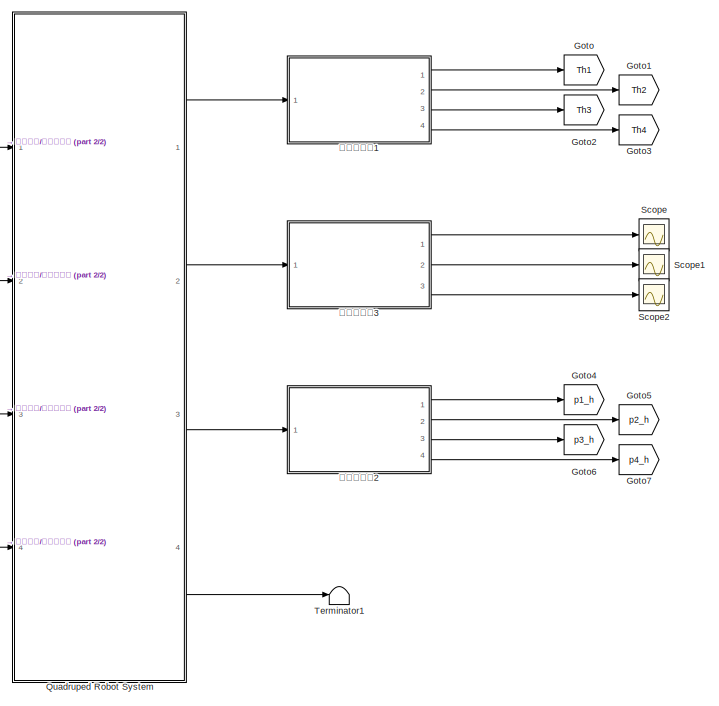
[diagram: root canvas - part 1/2, right side, full height]
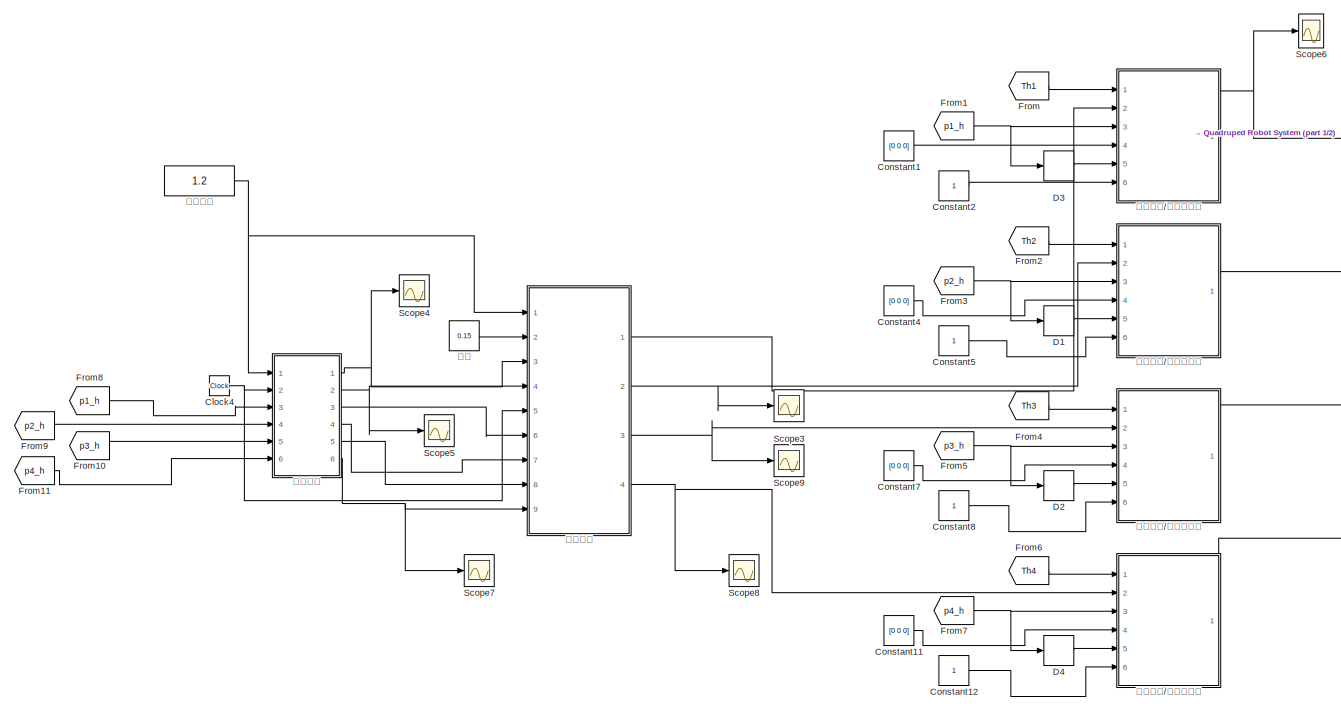
[diagram: root canvas - part 2/2, left side, full height]
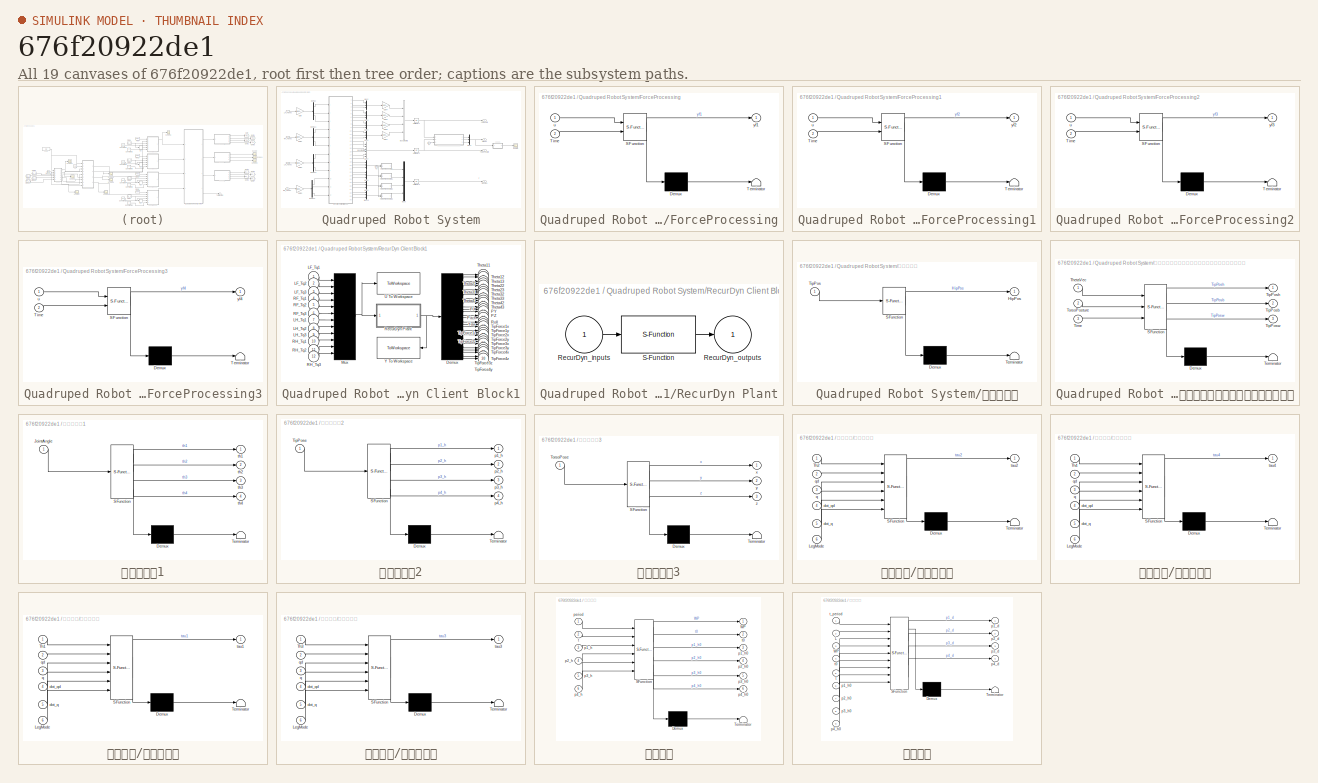
[diagram: thumbnail index - all 19 canvases of the model, root first then tree order]
MODEL slx_676f20922de1
KIND model
CONFIG AbsTol = auto
CONFIG EnableMultiTasking = on
CONFIG FixedStep = 0.001
CONFIG MaxStep = auto
CONFIG MinStep = auto
CONFIG RelTol = 1e-3
CONFIG SampleTimeConstraint = Unconstrained
CONFIG Solver = ode4
CONFIG SolverName = ode4
CONFIG StartTime = 0.0
CONFIG StopTime = 5
BLOCK [Clock] Clock4
BLOCK [Constant] Constant1
  Value = [0 0 0]
BLOCK [Constant] Constant11
  Value = [0 0 0]
BLOCK [Constant] Constant12
BLOCK [Constant] Constant2
BLOCK [Constant] Constant4
  Value = [0 0 0]
BLOCK [Constant] Constant5
BLOCK [Constant] Constant7
  Value = [0 0 0]
BLOCK [Constant] Constant8
BLOCK [Derivative] D1
  CoefficientInTFapproximation = 0.01
BLOCK [Derivative] D2
  CoefficientInTFapproximation = 0.01
BLOCK [Derivative] D3
  CoefficientInTFapproximation = 0.01
BLOCK [Derivative] D4
  CoefficientInTFapproximation = 0.01
BLOCK [From] From
  GotoTag = Th1
BLOCK [From] From1
  GotoTag = p1_h
BLOCK [From] From10
  GotoTag = p3_h
BLOCK [From] From11
  GotoTag = p4_h
BLOCK [From] From2
  GotoTag = Th2
BLOCK [From] From3
  GotoTag = p2_h
BLOCK [From] From4
  GotoTag = Th3
BLOCK [From] From5
  GotoTag = p3_h
BLOCK [From] From6
  GotoTag = Th4
BLOCK [From] From7
  GotoTag = p4_h
BLOCK [From] From8
  GotoTag = p1_h
BLOCK [From] From9
  GotoTag = p2_h
BLOCK [Goto] Goto
  GotoTag = Th1
BLOCK [Goto] Goto1
  GotoTag = Th2
BLOCK [Goto] Goto2
  GotoTag = Th3
BLOCK [Goto] Goto3
  GotoTag = Th4
BLOCK [Goto] Goto4
  GotoTag = p1_h
BLOCK [Goto] Goto5
  GotoTag = p2_h
BLOCK [Goto] Goto6
  GotoTag = p3_h
BLOCK [Goto] Goto7
  GotoTag = p4_h
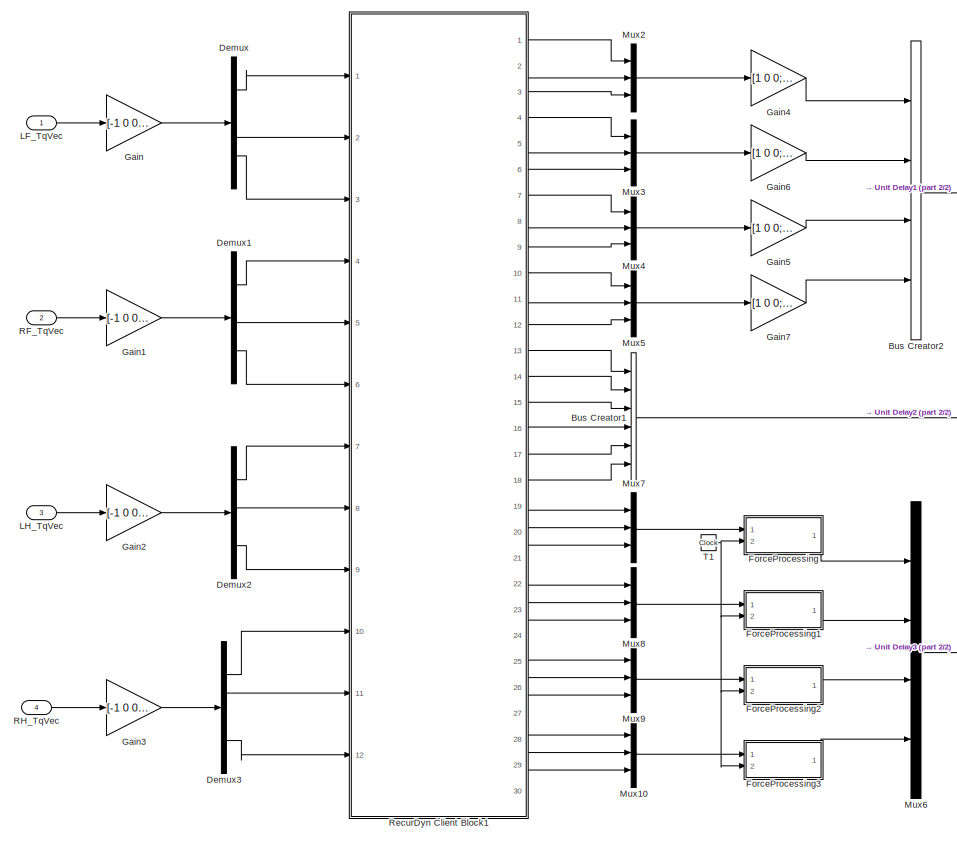
[diagram: Quadruped Robot System - part 1/2, left side, full height]
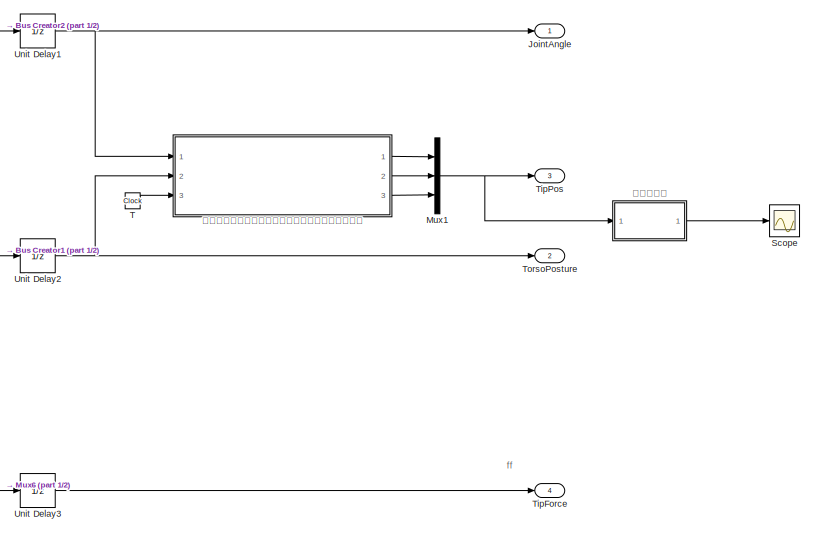
[diagram: Quadruped Robot System - part 2/2, middle right region]
BLOCK [SubSystem] Quadruped Robot System
  Ports = [4, 4]
  RequestExecContextInheritance = off
BLOCK [BusCreator] Quadruped Robot System/Bus Creator1
  DisplayOption = bar
  InheritFromInputs = on
  Inputs = 6
  Ports = [6, 1]
BLOCK [BusCreator] Quadruped Robot System/Bus Creator2
  DisplayOption = bar
  InheritFromInputs = on
  Inputs = 4
  Ports = [4, 1]
BLOCK [Demux] Quadruped Robot System/Demux
  DisplayOption = bar
  Outputs = 3
  Ports = [1, 3]
BLOCK [Demux] Quadruped Robot System/Demux1
  DisplayOption = bar
  Outputs = 3
  Ports = [1, 3]
BLOCK [Demux] Quadruped Robot System/Demux2
  DisplayOption = bar
  Outputs = 3
  Ports = [1, 3]
BLOCK [Demux] Quadruped Robot System/Demux3
  DisplayOption = bar
  Outputs = 3
  Ports = [1, 3]
BLOCK [SubSystem] Quadruped Robot System/ForceProcessing
  ErrorFcn = Stateflow.Translate.translate
  PermitHierarchicalResolution = ExplicitOnly
  Ports = [2, 1]
  RequestExecContextInheritance = off
  SFBlockType = MATLAB Function
  TreatAsAtomicUnit = on
BLOCK [Demux] Quadruped Robot System/ForceProcessing/ Demux 
  Outputs = 1
  Ports = [1, 1]
BLOCK [S-Function] Quadruped Robot System/ForceProcessing/ SFunction 
  EnableBusSupport = on
  FunctionName = sf_sfun
  PortCounts = [2 2]
  Ports = [2, 2]
  SFcnIsStateOwnerBlock = off
  SFunctionDeploymentMode = off
  Tag = Stateflow S-Function test_quadruped_staticwalk 2
BLOCK [Terminator] Quadruped Robot System/ForceProcessing/ Terminator 
BLOCK [Inport] Quadruped Robot System/ForceProcessing/Time
  IconDisplay = Port number
  Port = 2
BLOCK [Inport] Quadruped Robot System/ForceProcessing/u
  IconDisplay = Port number
BLOCK [Outport] Quadruped Robot System/ForceProcessing/yf1
  IconDisplay = Port number
BLOCK [SubSystem] Quadruped Robot System/ForceProcessing1
  ErrorFcn = Stateflow.Translate.translate
  PermitHierarchicalResolution = ExplicitOnly
  Ports = [2, 1]
  RequestExecContextInheritance = off
  SFBlockType = MATLAB Function
  TreatAsAtomicUnit = on
BLOCK [Demux] Quadruped Robot System/ForceProcessing1/ Demux 
  Outputs = 1
  Ports = [1, 1]
BLOCK [S-Function] Quadruped Robot System/ForceProcessing1/ SFunction 
  EnableBusSupport = on
  FunctionName = sf_sfun
  PortCounts = [2 2]
  Ports = [2, 2]
  SFcnIsStateOwnerBlock = off
  SFunctionDeploymentMode = off
  Tag = Stateflow S-Function test_quadruped_staticwalk 1
BLOCK [Terminator] Quadruped Robot System/ForceProcessing1/ Terminator 
BLOCK [Inport] Quadruped Robot System/ForceProcessing1/Time
  IconDisplay = Port number
  Port = 2
BLOCK [Inport] Quadruped Robot System/ForceProcessing1/u
  IconDisplay = Port number
BLOCK [Outport] Quadruped Robot System/ForceProcessing1/yf2
  IconDisplay = Port number
BLOCK [SubSystem] Quadruped Robot System/ForceProcessing2
  ErrorFcn = Stateflow.Translate.translate
  PermitHierarchicalResolution = ExplicitOnly
  Ports = [2, 1]
  RequestExecContextInheritance = off
  SFBlockType = MATLAB Function
  TreatAsAtomicUnit = on
BLOCK [Demux] Quadruped Robot System/ForceProcessing2/ Demux 
  Outputs = 1
  Ports = [1, 1]
BLOCK [S-Function] Quadruped Robot System/ForceProcessing2/ SFunction 
  EnableBusSupport = on
  FunctionName = sf_sfun
  PortCounts = [2 2]
  Ports = [2, 2]
  SFcnIsStateOwnerBlock = off
  SFunctionDeploymentMode = off
  Tag = Stateflow S-Function test_quadruped_staticwalk 3
BLOCK [Terminator] Quadruped Robot System/ForceProcessing2/ Terminator 
BLOCK [Inport] Quadruped Robot System/ForceProcessing2/Time
  IconDisplay = Port number
  Port = 2
BLOCK [Inport] Quadruped Robot System/ForceProcessing2/u
  IconDisplay = Port number
BLOCK [Outport] Quadruped Robot System/ForceProcessing2/yf3
  IconDisplay = Port number
BLOCK [SubSystem] Quadruped Robot System/ForceProcessing3
  ErrorFcn = Stateflow.Translate.translate
  PermitHierarchicalResolution = ExplicitOnly
  Ports = [2, 1]
  RequestExecContextInheritance = off
  SFBlockType = MATLAB Function
  TreatAsAtomicUnit = on
BLOCK [Demux] Quadruped Robot System/ForceProcessing3/ Demux 
  Outputs = 1
  Ports = [1, 1]
BLOCK [S-Function] Quadruped Robot System/ForceProcessing3/ SFunction 
  EnableBusSupport = on
  FunctionName = sf_sfun
  PortCounts = [2 2]
  Ports = [2, 2]
  SFcnIsStateOwnerBlock = off
  SFunctionDeploymentMode = off
  Tag = Stateflow S-Function test_quadruped_staticwalk 4
BLOCK [Terminator] Quadruped Robot System/ForceProcessing3/ Terminator 
BLOCK [Inport] Quadruped Robot System/ForceProcessing3/Time
  IconDisplay = Port number
  Port = 2
BLOCK [Inport] Quadruped Robot System/ForceProcessing3/u
  IconDisplay = Port number
BLOCK [Outport] Quadruped Robot System/ForceProcessing3/yf4
  IconDisplay = Port number
BLOCK [Gain] Quadruped Robot System/Gain
  Gain = [-1 0 0;0 1 0;0 0 -1]
  Multiplication = Matrix(K*u) (u vector)
  OutDataTypeStr = Inherit: Inherit via internal rule
  ParamDataTypeStr = Inherit: Inherit via internal rule
  SaturateOnIntegerOverflow = off
BLOCK [Gain] Quadruped Robot System/Gain1
  Gain = [-1 0 0;0 1 0;0 0 1]
  Multiplication = Matrix(K*u) (u vector)
  OutDataTypeStr = Inherit: Inherit via internal rule
  ParamDataTypeStr = Inherit: Inherit via internal rule
  SaturateOnIntegerOverflow = off
BLOCK [Gain] Quadruped Robot System/Gain2
  Gain = [-1 0 0;0 1 0;0 0 -1]
  Multiplication = Matrix(K*u) (u vector)
  OutDataTypeStr = Inherit: Inherit via internal rule
  ParamDataTypeStr = Inherit: Inherit via internal rule
  SaturateOnIntegerOverflow = off
BLOCK [Gain] Quadruped Robot System/Gain3
  Gain = [-1 0 0;0 1 0;0 0 1]
  Multiplication = Matrix(K*u) (u vector)
  OutDataTypeStr = Inherit: Inherit via internal rule
  ParamDataTypeStr = Inherit: Inherit via internal rule
  SaturateOnIntegerOverflow = off
BLOCK [Gain] Quadruped Robot System/Gain4
  Gain = [1 0 0;0 1 0;0 0 1]
  Multiplication = Matrix(K*u) (u vector)
  OutDataTypeStr = Inherit: Inherit via internal rule
  ParamDataTypeStr = Inherit: Inherit via internal rule
  SaturateOnIntegerOverflow = off
BLOCK [Gain] Quadruped Robot System/Gain5
  Gain = [1 0 0;0 1 0;0 0 1]
  Multiplication = Matrix(K*u) (u vector)
  OutDataTypeStr = Inherit: Inherit via internal rule
  ParamDataTypeStr = Inherit: Inherit via internal rule
  SaturateOnIntegerOverflow = off
BLOCK [Gain] Quadruped Robot System/Gain6
  Gain = [1 0 0;0 1 0;0 0 -1]
  Multiplication = Matrix(K*u) (u vector)
  OutDataTypeStr = Inherit: Inherit via internal rule
  ParamDataTypeStr = Inherit: Inherit via internal rule
  SaturateOnIntegerOverflow = off
BLOCK [Gain] Quadruped Robot System/Gain7
  Gain = [1 0 0;0 1 0;0 0 -1]
  Multiplication = Matrix(K*u) (u vector)
  OutDataTypeStr = Inherit: Inherit via internal rule
  ParamDataTypeStr = Inherit: Inherit via internal rule
  SaturateOnIntegerOverflow = off
BLOCK [Outport] Quadruped Robot System/JointAngle
  IconDisplay = Port number
BLOCK [Inport] Quadruped Robot System/LF_TqVec
  IconDisplay = Port number
BLOCK [Inport] Quadruped Robot System/LH_TqVec
  IconDisplay = Port number
  Port = 3
BLOCK [Mux] Quadruped Robot System/Mux1
  DisplayOption = bar
  Inputs = 3
  Ports = [3, 1]
BLOCK [Mux] Quadruped Robot System/Mux10
  DisplayOption = bar
  Inputs = 3
  Ports = [3, 1]
BLOCK [Mux] Quadruped Robot System/Mux2
  DisplayOption = bar
  Inputs = 3
  Ports = [3, 1]
BLOCK [Mux] Quadruped Robot System/Mux3
  DisplayOption = bar
  Inputs = 3
  Ports = [3, 1]
BLOCK [Mux] Quadruped Robot System/Mux4
  DisplayOption = bar
  Inputs = 3
  Ports = [3, 1]
BLOCK [Mux] Quadruped Robot System/Mux5
  DisplayOption = bar
  Inputs = 3
  Ports = [3, 1]
BLOCK [Mux] Quadruped Robot System/Mux6
  DisplayOption = bar
  Ports = [4, 1]
BLOCK [Mux] Quadruped Robot System/Mux7
  DisplayOption = bar
  Inputs = 3
  Ports = [3, 1]
BLOCK [Mux] Quadruped Robot System/Mux8
  DisplayOption = bar
  Inputs = 3
  Ports = [3, 1]
BLOCK [Mux] Quadruped Robot System/Mux9
  DisplayOption = bar
  Inputs = 3
  Ports = [3, 1]
BLOCK [Inport] Quadruped Robot System/RF_TqVec
  IconDisplay = Port number
  Port = 2
BLOCK [Inport] Quadruped Robot System/RH_TqVec
  IconDisplay = Port number
  Port = 4
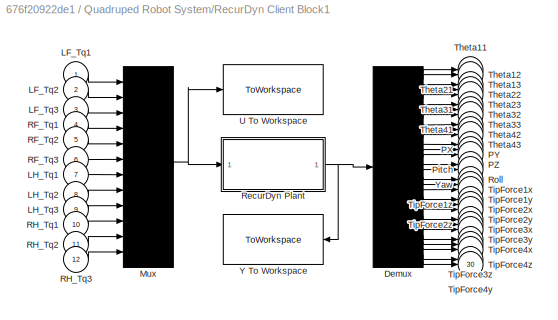
BLOCK [SubSystem] Quadruped Robot System/RecurDyn Client Block1
  Ports = [12, 30]
  RequestExecContextInheritance = off
  ShowPortLabels = none
BLOCK [Demux] Quadruped Robot System/RecurDyn Client Block1/Demux
  Outputs = 30
  Ports = [1, 30]
BLOCK [Inport] Quadruped Robot System/RecurDyn Client Block1/LF_Tq1
  IconDisplay = Port number
BLOCK [Inport] Quadruped Robot System/RecurDyn Client Block1/LF_Tq2
  IconDisplay = Port number
  Port = 2
BLOCK [Inport] Quadruped Robot System/RecurDyn Client Block1/LF_Tq3
  IconDisplay = Port number
  Port = 3
BLOCK [Inport] Quadruped Robot System/RecurDyn Client Block1/LH_Tq1
  IconDisplay = Port number
  Port = 7
BLOCK [Inport] Quadruped Robot System/RecurDyn Client Block1/LH_Tq2
  IconDisplay = Port number
  Port = 8
BLOCK [Inport] Quadruped Robot System/RecurDyn Client Block1/LH_Tq3
  IconDisplay = Port number
  Port = 9
BLOCK [Mux] Quadruped Robot System/RecurDyn Client Block1/Mux
  Inputs = 12
  Ports = [12, 1]
BLOCK [Outport] Quadruped Robot System/RecurDyn Client Block1/PX        
  IconDisplay = Port number
  Port = 13
BLOCK [Outport] Quadruped Robot System/RecurDyn Client Block1/PY        
  IconDisplay = Port number
  Port = 14
BLOCK [Outport] Quadruped Robot System/RecurDyn Client Block1/PZ        
  IconDisplay = Port number
  Port = 15
BLOCK [Outport] Quadruped Robot System/RecurDyn Client Block1/Pitch     
  IconDisplay = Port number
  Port = 16
BLOCK [Inport] Quadruped Robot System/RecurDyn Client Block1/RF_Tq1
  IconDisplay = Port number
  Port = 4
BLOCK [Inport] Quadruped Robot System/RecurDyn Client Block1/RF_Tq2
  IconDisplay = Port number
  Port = 5
BLOCK [Inport] Quadruped Robot System/RecurDyn Client Block1/RF_Tq3
  IconDisplay = Port number
  Port = 6
BLOCK [Inport] Quadruped Robot System/RecurDyn Client Block1/RH_Tq1
  IconDisplay = Port number
  Port = 10
BLOCK [Inport] Quadruped Robot System/RecurDyn Client Block1/RH_Tq2
  IconDisplay = Port number
  Port = 11
BLOCK [Inport] Quadruped Robot System/RecurDyn Client Block1/RH_Tq3
  IconDisplay = Port number
  Port = 12
BLOCK [SubSystem] Quadruped Robot System/RecurDyn Client Block1/RecurDyn Plant
  Ports = [1, 1]
  RequestExecContextInheritance = off
BLOCK [Inport] Quadruped Robot System/RecurDyn Client Block1/RecurDyn Plant/ RecurDyn_inputs
  IconDisplay = Port number
BLOCK [Outport] Quadruped Robot System/RecurDyn Client Block1/RecurDyn Plant/RecurDyn_outputs
  IconDisplay = Port number
  InitialOutput = 0
BLOCK [S-Function] Quadruped Robot System/RecurDyn Client Block1/RecurDyn Plant/S-Function
  EnableBusSupport = off
  FunctionName = recurdyn_client_9_1
  Parameters = RecurDyn_controltimestep_,RecurDyn_model_name,RecurDyn_,RecurDyn_static_,RecurDyn_step_,RecurDyn_show_,RecurDyn_ani_,Matlab_version_,RecurDyn_model_n,Plant_inputs_num,Plant_outputs_num,Waitingtime,Create_Output_Folder_,Output_File_Name_,Output_file_n
  Ports = [1, 1]
  SFcnIsStateOwnerBlock = off
  SFunctionDeploymentMode = off
BLOCK [Outport] Quadruped Robot System/RecurDyn Client Block1/Roll      
  IconDisplay = Port number
  Port = 17
BLOCK [Outport] Quadruped Robot System/RecurDyn Client Block1/Theta11   
  IconDisplay = Port number
BLOCK [Outport] Quadruped Robot System/RecurDyn Client Block1/Theta12   
  IconDisplay = Port number
  Port = 2
BLOCK [Outport] Quadruped Robot System/RecurDyn Client Block1/Theta13   
  IconDisplay = Port number
  Port = 3
BLOCK [Outport] Quadruped Robot System/RecurDyn Client Block1/Theta21   
  IconDisplay = Port number
  Port = 4
BLOCK [Outport] Quadruped Robot System/RecurDyn Client Block1/Theta22   
  IconDisplay = Port number
  Port = 5
BLOCK [Outport] Quadruped Robot System/RecurDyn Client Block1/Theta23   
  IconDisplay = Port number
  Port = 6
BLOCK [Outport] Quadruped Robot System/RecurDyn Client Block1/Theta31   
  IconDisplay = Port number
  Port = 7
BLOCK [Outport] Quadruped Robot System/RecurDyn Client Block1/Theta32   
  IconDisplay = Port number
  Port = 8
BLOCK [Outport] Quadruped Robot System/RecurDyn Client Block1/Theta33   
  IconDisplay = Port number
  Port = 9
BLOCK [Outport] Quadruped Robot System/RecurDyn Client Block1/Theta41   
  IconDisplay = Port number
  Port = 10
BLOCK [Outport] Quadruped Robot System/RecurDyn Client Block1/Theta42   
  IconDisplay = Port number
  Port = 11
BLOCK [Outport] Quadruped Robot System/RecurDyn Client Block1/Theta43   
  IconDisplay = Port number
  Port = 12
BLOCK [Outport] Quadruped Robot System/RecurDyn Client Block1/TipForce1x
  IconDisplay = Port number
  Port = 19
BLOCK [Outport] Quadruped Robot System/RecurDyn Client Block1/TipForce1y
  IconDisplay = Port number
  Port = 20
BLOCK [Outport] Quadruped Robot System/RecurDyn Client Block1/TipForce1z
  IconDisplay = Port number
  Port = 21
BLOCK [Outport] Quadruped Robot System/RecurDyn Client Block1/TipForce2x
  IconDisplay = Port number
  Port = 22
BLOCK [Outport] Quadruped Robot System/RecurDyn Client Block1/TipForce2y
  IconDisplay = Port number
  Port = 23
BLOCK [Outport] Quadruped Robot System/RecurDyn Client Block1/TipForce2z
  IconDisplay = Port number
  Port = 24
BLOCK [Outport] Quadruped Robot System/RecurDyn Client Block1/TipForce3x
  IconDisplay = Port number
  Port = 25
BLOCK [Outport] Quadruped Robot System/RecurDyn Client Block1/TipForce3y
  IconDisplay = Port number
  Port = 26
BLOCK [Outport] Quadruped Robot System/RecurDyn Client Block1/TipForce3z
  IconDisplay = Port number
  Port = 27
BLOCK [Outport] Quadruped Robot System/RecurDyn Client Block1/TipForce4x
  IconDisplay = Port number
  Port = 28
BLOCK [Outport] Quadruped Robot System/RecurDyn Client Block1/TipForce4y
  IconDisplay = Port number
  Port = 29
BLOCK [Outport] Quadruped Robot System/RecurDyn Client Block1/TipForce4z
  IconDisplay = Port number
  Port = 30
BLOCK [ToWorkspace] Quadruped Robot System/RecurDyn Client Block1/U To Workspace
  MaxDataPoints = inf
  Ports = [1]
  VariableName = RecurDyn_inputs
BLOCK [ToWorkspace] Quadruped Robot System/RecurDyn Client Block1/Y To Workspace
  MaxDataPoints = inf
  Ports = [1]
  VariableName = RecurDyn_outputs
BLOCK [Outport] Quadruped Robot System/RecurDyn Client Block1/Yaw       
  IconDisplay = Port number
  Port = 18
BLOCK [Scope] Quadruped Robot System/Scope
  Floating = off
  NumInputPorts = 1
  Ports = [1]
  ScopeSpecificationString = Simulink.scopes.TimeScopeBlockCfg('CurrentConfiguration', extmgr.ConfigurationSet(extmgr.Configuration('Core','General UI',true),extmgr.Configuration('Core','Source UI',true),extmgr.Configuration('Sources','WiredSimulink',true,'DataLoggingVariableName','ScopeData1'),extmgr.Configuration('Visuals','Time Domain',true,'SerializedDisplays',{struct('MinYLimReal','-0.82316','MaxYLimReal','0.12564','YLab...<+1415ch>
BLOCK [Clock] Quadruped Robot System/T
BLOCK [Clock] Quadruped Robot System/T1
BLOCK [Outport] Quadruped Robot System/TipForce
  IconDisplay = Port number
  Port = 4
BLOCK [Outport] Quadruped Robot System/TipPos
  IconDisplay = Port number
  Port = 3
BLOCK [Outport] Quadruped Robot System/TorsoPosture
  IconDisplay = Port number
  Port = 2
BLOCK [UnitDelay] Quadruped Robot System/Unit Delay1
  InitialCondition = [pi/2;pi/4;0;pi/2;pi/4;0;pi/2;pi/4;0;pi/2;pi/4;0]
  InputProcessing = Elements as channels (sample based)
  SampleTime = 0.001
BLOCK [UnitDelay] Quadruped Robot System/Unit Delay2
  InitialCondition = [0;0.70;0;0;0;0]
  InputProcessing = Elements as channels (sample based)
  SampleTime = 0.001
BLOCK [UnitDelay] Quadruped Robot System/Unit Delay3
  InitialCondition = [0;0;0;0;0;0;0;0;0;0;0;0]
  InputProcessing = Elements as channels (sample based)
  SampleTime = 0.001
BLOCK [SubSystem] Quadruped Robot System/信号选择器
  ErrorFcn = Stateflow.Translate.translate
  PermitHierarchicalResolution = ExplicitOnly
  Ports = [1, 1]
  RequestExecContextInheritance = off
  SFBlockType = MATLAB Function
  TreatAsAtomicUnit = on
BLOCK [Demux] Quadruped Robot System/信号选择器/ Demux 
  Outputs = 1
  Ports = [1, 1]
BLOCK [S-Function] Quadruped Robot System/信号选择器/ SFunction 
  EnableBusSupport = on
  FunctionName = sf_sfun
  PortCounts = [1 2]
  Ports = [1, 2]
  SFcnIsStateOwnerBlock = off
  SFunctionDeploymentMode = off
  Tag = Stateflow S-Function test_quadruped_staticwalk 13
BLOCK [Terminator] Quadruped Robot System/信号选择器/ Terminator 
BLOCK [Outport] Quadruped Robot System/信号选择器/HipPos
  IconDisplay = Port number
BLOCK [Inport] Quadruped Robot System/信号选择器/TipPos
  IconDisplay = Port number
BLOCK [SubSystem] Quadruped Robot System/足端坐标：髋部坐标系、本体坐标系以及世界坐标系
  ErrorFcn = Stateflow.Translate.translate
  PermitHierarchicalResolution = ExplicitOnly
  Ports = [3, 3]
  RequestExecContextInheritance = off
  SFBlockType = MATLAB Function
  TreatAsAtomicUnit = on
BLOCK [Demux] Quadruped Robot System/足端坐标：髋部坐标系、本体坐标系以及世界坐标系/ Demux 
  Outputs = 1
  Ports = [1, 1]
BLOCK [S-Function] Quadruped Robot System/足端坐标：髋部坐标系、本体坐标系以及世界坐标系/ SFunction 
  EnableBusSupport = on
  FunctionName = sf_sfun
  PortCounts = [3 4]
  Ports = [3, 4]
  SFcnIsStateOwnerBlock = off
  SFunctionDeploymentMode = off
  Tag = Stateflow S-Function test_quadruped_staticwalk 6
BLOCK [Terminator] Quadruped Robot System/足端坐标：髋部坐标系、本体坐标系以及世界坐标系/ Terminator 
BLOCK [Inport] Quadruped Robot System/足端坐标：髋部坐标系、本体坐标系以及世界坐标系/ThetaVec
  IconDisplay = Port number
BLOCK [Inport] Quadruped Robot System/足端坐标：髋部坐标系、本体坐标系以及世界坐标系/Time
  IconDisplay = Port number
  Port = 3
BLOCK [Outport] Quadruped Robot System/足端坐标：髋部坐标系、本体坐标系以及世界坐标系/TipPosb
  IconDisplay = Port number
  Port = 2
BLOCK [Outport] Quadruped Robot System/足端坐标：髋部坐标系、本体坐标系以及世界坐标系/TipPosh
  IconDisplay = Port number
BLOCK [Outport] Quadruped Robot System/足端坐标：髋部坐标系、本体坐标系以及世界坐标系/TipPosw
  IconDisplay = Port number
  Port = 3
BLOCK [Inport] Quadruped Robot System/足端坐标：髋部坐标系、本体坐标系以及世界坐标系/TorsoPosture
  IconDisplay = Port number
  Port = 2
BLOCK [Scope] Scope
  Floating = off
  NumInputPorts = 1
  Ports = [1]
  ScopeSpecificationString = Simulink.scopes.TimeScopeBlockCfg('CurrentConfiguration', extmgr.ConfigurationSet(extmgr.Configuration('Core','General UI',true),extmgr.Configuration('Core','Source UI',true),extmgr.Configuration('Sources','WiredSimulink',true,'DataLoggingVariableName','ScopeData1'),extmgr.Configuration('Visuals','Time Domain',true,'SerializedDisplays',{struct('MinYLimReal','-0.08441','MaxYLimReal','0.64128','YLab...<+1414ch>
BLOCK [Scope] Scope1
  Floating = off
  NumInputPorts = 1
  Ports = [1]
  ScopeSpecificationString = Simulink.scopes.TimeScopeBlockCfg('CurrentConfiguration', extmgr.ConfigurationSet(extmgr.Configuration('Core','General UI',true),extmgr.Configuration('Core','Source UI',true),extmgr.Configuration('Sources','WiredSimulink',true,'DataLoggingVariableName','ScopeData2'),extmgr.Configuration('Visuals','Time Domain',true,'SerializedDisplays',{struct('MinYLimReal','0.57741','MaxYLimReal','0.71362','YLabe...<+1394ch>
BLOCK [Scope] Scope2
  Floating = off
  NumInputPorts = 1
  Ports = [1]
  ScopeSpecificationString = Simulink.scopes.TimeScopeBlockCfg('CurrentConfiguration', extmgr.ConfigurationSet(extmgr.Configuration('Core','General UI',true),extmgr.Configuration('Core','Source UI',true),extmgr.Configuration('Sources','WiredSimulink',true,'DataLoggingVariableName','ScopeData3'),extmgr.Configuration('Visuals','Time Domain',true,'SerializedDisplays',{struct('MinYLimReal','-0.04522','MaxYLimReal','0.06739','YLab...<+1396ch>
BLOCK [Scope] Scope3
  Floating = off
  NumInputPorts = 1
  Ports = [1]
  ScopeSpecificationString = Simulink.scopes.TimeScopeBlockCfg('CurrentConfiguration', extmgr.ConfigurationSet(extmgr.Configuration('Core','General UI',true),extmgr.Configuration('Core','Source UI',true),extmgr.Configuration('Sources','WiredSimulink',true,'DataLoggingVariableName','ScopeData1'),extmgr.Configuration('Visuals','Time Domain',true,'SerializedDisplays',{struct('MinYLimReal','-0.79375','MaxYLimReal','0.14375','YLab...<+1405ch>
BLOCK [Scope] Scope4
  Floating = off
  NumInputPorts = 1
  Ports = [1]
  ScopeSpecificationString = Simulink.scopes.TimeScopeBlockCfg('CurrentConfiguration', extmgr.ConfigurationSet(extmgr.Configuration('Core','General UI',true),extmgr.Configuration('Core','Source UI',true),extmgr.Configuration('Sources','WiredSimulink',true,'DataLoggingVariableName','ScopeData2'),extmgr.Configuration('Visuals','Time Domain',true,'SerializedDisplays',{struct('MinYLimReal','-1.25','MaxYLimReal','11.25','YLabelRea...<+1398ch>
BLOCK [Scope] Scope5
  Floating = off
  NumInputPorts = 1
  Ports = [1]
  ScopeSpecificationString = Simulink.scopes.TimeScopeBlockCfg('CurrentConfiguration', extmgr.ConfigurationSet(extmgr.Configuration('Core','General UI',true),extmgr.Configuration('Core','Source UI',true),extmgr.Configuration('Sources','WiredSimulink',true,'DataLoggingVariableName','ScopeData1'),extmgr.Configuration('Visuals','Time Domain',true,'SerializedDisplays',{struct('MinYLimReal','-0.45','MaxYLimReal','4.05','YLabelReal...<+1387ch>
BLOCK [Scope] Scope6
  Floating = off
  NumInputPorts = 1
  Ports = [1]
  ScopeSpecificationString = C++SS(StrPVP('Location','[5, 50, 1925, 1036]'),StrPVP('Open','off'),MxPVP('AxesTitles',53,'struct(''axes1'',''%<SignalLabel>'')'),MxPVP('ScopeGraphics',56,'struct(''FigureColor'',''[0.313725490196078 0.313725490196078 0.313725490196078]'',''AxesColor'',''[0.313725490196078 0.313725490196078 0.313725490196078]'',''AxesTickColor'',''[1 1 1]'',''LineColors'',''[1 0 0;0 1 0;1 1 0;1 0 0;0 1 0;1 1 0]'',...<+495ch>
BLOCK [Scope] Scope7
  Floating = off
  NumInputPorts = 1
  Ports = [1]
  ScopeSpecificationString = Simulink.scopes.TimeScopeBlockCfg('CurrentConfiguration', extmgr.ConfigurationSet(extmgr.Configuration('Core','General UI',true),extmgr.Configuration('Core','Source UI',true),extmgr.Configuration('Sources','WiredSimulink',true,'DataLoggingVariableName','ScopeData2'),extmgr.Configuration('Visuals','Time Domain',true,'SerializedDisplays',{struct('MinYLimReal','-0.14755','MaxYLimReal','0.15976','YLab...<+1447ch>
BLOCK [Scope] Scope8
  Floating = off
  NumInputPorts = 1
  Ports = [1]
  ScopeSpecificationString = Simulink.scopes.TimeScopeBlockCfg('CurrentConfiguration', extmgr.ConfigurationSet(extmgr.Configuration('Core','General UI',true),extmgr.Configuration('Core','Source UI',true),extmgr.Configuration('Sources','WiredSimulink',true,'DataLoggingVariableName','ScopeData3'),extmgr.Configuration('Visuals','Time Domain',true,'SerializedDisplays',{struct('MinYLimReal','-3.85916','MaxYLimReal','0.48676','YLab...<+1469ch>
BLOCK [Scope] Scope9
  Floating = off
  NumInputPorts = 1
  Ports = [1]
  ScopeSpecificationString = Simulink.scopes.TimeScopeBlockCfg('CurrentConfiguration', extmgr.ConfigurationSet(extmgr.Configuration('Core','General UI',true),extmgr.Configuration('Core','Source UI',true),extmgr.Configuration('Sources','WiredSimulink',true,'DataLoggingVariableName','ScopeData4'),extmgr.Configuration('Visuals','Time Domain',true,'SerializedDisplays',{struct('MinYLimReal','-0.79375','MaxYLimReal','0.14375','YLab...<+1405ch>
BLOCK [Terminator] Terminator1
BLOCK [SubSystem] 信号选择器1
  ErrorFcn = Stateflow.Translate.translate
  PermitHierarchicalResolution = ExplicitOnly
  Ports = [1, 4]
  RequestExecContextInheritance = off
  SFBlockType = MATLAB Function
  TreatAsAtomicUnit = on
BLOCK [Demux] 信号选择器1/ Demux 
  Outputs = 1
  Ports = [1, 1]
BLOCK [S-Function] 信号选择器1/ SFunction 
  EnableBusSupport = on
  FunctionName = sf_sfun
  PortCounts = [1 5]
  Ports = [1, 5]
  SFcnIsStateOwnerBlock = off
  SFunctionDeploymentMode = off
  Tag = Stateflow S-Function test_quadruped_staticwalk 16
BLOCK [Terminator] 信号选择器1/ Terminator 
BLOCK [Inport] 信号选择器1/JointAngle
  IconDisplay = Port number
BLOCK [Outport] 信号选择器1/th1
  IconDisplay = Port number
BLOCK [Outport] 信号选择器1/th2
  IconDisplay = Port number
  Port = 2
BLOCK [Outport] 信号选择器1/th3
  IconDisplay = Port number
  Port = 3
BLOCK [Outport] 信号选择器1/th4
  IconDisplay = Port number
  Port = 4
BLOCK [SubSystem] 信号选择器2
  ErrorFcn = Stateflow.Translate.translate
  PermitHierarchicalResolution = ExplicitOnly
  Ports = [1, 4]
  RequestExecContextInheritance = off
  SFBlockType = MATLAB Function
  TreatAsAtomicUnit = on
BLOCK [Demux] 信号选择器2/ Demux 
  Outputs = 1
  Ports = [1, 1]
BLOCK [S-Function] 信号选择器2/ SFunction 
  EnableBusSupport = on
  FunctionName = sf_sfun
  PortCounts = [1 5]
  Ports = [1, 5]
  SFcnIsStateOwnerBlock = off
  SFunctionDeploymentMode = off
  Tag = Stateflow S-Function test_quadruped_staticwalk 5
BLOCK [Terminator] 信号选择器2/ Terminator 
BLOCK [Inport] 信号选择器2/TipPose
  IconDisplay = Port number
BLOCK [Outport] 信号选择器2/p1_h
  IconDisplay = Port number
BLOCK [Outport] 信号选择器2/p2_h
  IconDisplay = Port number
  Port = 2
BLOCK [Outport] 信号选择器2/p3_h
  IconDisplay = Port number
  Port = 3
BLOCK [Outport] 信号选择器2/p4_h
  IconDisplay = Port number
  Port = 4
BLOCK [SubSystem] 信号选择器3
  ErrorFcn = Stateflow.Translate.translate
  PermitHierarchicalResolution = ExplicitOnly
  Ports = [1, 3]
  RequestExecContextInheritance = off
  SFBlockType = MATLAB Function
  TreatAsAtomicUnit = on
BLOCK [Demux] 信号选择器3/ Demux 
  Outputs = 1
  Ports = [1, 1]
BLOCK [S-Function] 信号选择器3/ SFunction 
  EnableBusSupport = on
  FunctionName = sf_sfun
  PortCounts = [1 4]
  Ports = [1, 4]
  SFcnIsStateOwnerBlock = off
  SFunctionDeploymentMode = off
  Tag = Stateflow S-Function test_quadruped_staticwalk 7
BLOCK [Terminator] 信号选择器3/ Terminator 
BLOCK [Inport] 信号选择器3/TorsoPose
  IconDisplay = Port number
BLOCK [Outport] 信号选择器3/x
  IconDisplay = Port number
BLOCK [Outport] 信号选择器3/y
  IconDisplay = Port number
  Port = 2
BLOCK [Outport] 信号选择器3/z
  IconDisplay = Port number
  Port = 3
BLOCK [SubSystem] 右前腿力//位控制单元
  ErrorFcn = Stateflow.Translate.translate
  PermitHierarchicalResolution = ExplicitOnly
  Ports = [6, 1]
  RequestExecContextInheritance = off
  SFBlockType = MATLAB Function
  TreatAsAtomicUnit = on
BLOCK [Demux] 右前腿力//位控制单元/ Demux 
  Outputs = 1
  Ports = [1, 1]
BLOCK [S-Function] 右前腿力//位控制单元/ SFunction 
  EnableBusSupport = on
  FunctionName = sf_sfun
  PortCounts = [6 2]
  Ports = [6, 2]
  SFcnIsStateOwnerBlock = off
  SFunctionDeploymentMode = off
  Tag = Stateflow S-Function test_quadruped_staticwalk 10
BLOCK [Terminator] 右前腿力//位控制单元/ Terminator 
BLOCK [Inport] 右前腿力//位控制单元/LegMode
  IconDisplay = Port number
  Port = 6
BLOCK [Inport] 右前腿力//位控制单元/Th2
  IconDisplay = Port number
BLOCK [Inport] 右前腿力//位控制单元/dot_q
  IconDisplay = Port number
  Port = 5
BLOCK [Inport] 右前腿力//位控制单元/dot_qd
  IconDisplay = Port number
  Port = 4
BLOCK [Inport] 右前腿力//位控制单元/q
  IconDisplay = Port number
  Port = 3
BLOCK [Inport] 右前腿力//位控制单元/qd
  IconDisplay = Port number
  Port = 2
BLOCK [Outport] 右前腿力//位控制单元/tau2
  IconDisplay = Port number
BLOCK [SubSystem] 右后腿力//位控制单元
  ErrorFcn = Stateflow.Translate.translate
  PermitHierarchicalResolution = ExplicitOnly
  Ports = [6, 1]
  RequestExecContextInheritance = off
  SFBlockType = MATLAB Function
  TreatAsAtomicUnit = on
BLOCK [Demux] 右后腿力//位控制单元/ Demux 
  Outputs = 1
  Ports = [1, 1]
BLOCK [S-Function] 右后腿力//位控制单元/ SFunction 
  EnableBusSupport = on
  FunctionName = sf_sfun
  PortCounts = [6 2]
  Ports = [6, 2]
  SFcnIsStateOwnerBlock = off
  SFunctionDeploymentMode = off
  Tag = Stateflow S-Function test_quadruped_staticwalk 12
BLOCK [Terminator] 右后腿力//位控制单元/ Terminator 
BLOCK [Inport] 右后腿力//位控制单元/LegMode
  IconDisplay = Port number
  Port = 6
BLOCK [Inport] 右后腿力//位控制单元/Th4
  IconDisplay = Port number
BLOCK [Inport] 右后腿力//位控制单元/dot_q
  IconDisplay = Port number
  Port = 5
BLOCK [Inport] 右后腿力//位控制单元/dot_qd
  IconDisplay = Port number
  Port = 4
BLOCK [Inport] 右后腿力//位控制单元/q
  IconDisplay = Port number
  Port = 3
BLOCK [Inport] 右后腿力//位控制单元/qd
  IconDisplay = Port number
  Port = 2
BLOCK [Outport] 右后腿力//位控制单元/tau4
  IconDisplay = Port number
BLOCK [SubSystem] 左前腿力//位控制单元
  ErrorFcn = Stateflow.Translate.translate
  PermitHierarchicalResolution = ExplicitOnly
  Ports = [6, 1]
  RequestExecContextInheritance = off
  SFBlockType = MATLAB Function
  TreatAsAtomicUnit = on
BLOCK [Demux] 左前腿力//位控制单元/ Demux 
  Outputs = 1
  Ports = [1, 1]
BLOCK [S-Function] 左前腿力//位控制单元/ SFunction 
  EnableBusSupport = on
  FunctionName = sf_sfun
  PortCounts = [6 2]
  Ports = [6, 2]
  SFcnIsStateOwnerBlock = off
  SFunctionDeploymentMode = off
  Tag = Stateflow S-Function test_quadruped_staticwalk 15
BLOCK [Terminator] 左前腿力//位控制单元/ Terminator 
BLOCK [Inport] 左前腿力//位控制单元/LegMode
  IconDisplay = Port number
  Port = 6
BLOCK [Inport] 左前腿力//位控制单元/Th1
  IconDisplay = Port number
BLOCK [Inport] 左前腿力//位控制单元/dot_q
  IconDisplay = Port number
  Port = 5
BLOCK [Inport] 左前腿力//位控制单元/dot_qd
  IconDisplay = Port number
  Port = 4
BLOCK [Inport] 左前腿力//位控制单元/q
  IconDisplay = Port number
  Port = 3
BLOCK [Inport] 左前腿力//位控制单元/qd
  IconDisplay = Port number
  Port = 2
BLOCK [Outport] 左前腿力//位控制单元/tau1
  IconDisplay = Port number
BLOCK [SubSystem] 左后腿力//位控制单元
  ErrorFcn = Stateflow.Translate.translate
  PermitHierarchicalResolution = ExplicitOnly
  Ports = [6, 1]
  RequestExecContextInheritance = off
  SFBlockType = MATLAB Function
  TreatAsAtomicUnit = on
BLOCK [Demux] 左后腿力//位控制单元/ Demux 
  Outputs = 1
  Ports = [1, 1]
BLOCK [S-Function] 左后腿力//位控制单元/ SFunction 
  EnableBusSupport = on
  FunctionName = sf_sfun
  PortCounts = [6 2]
  Ports = [6, 2]
  SFcnIsStateOwnerBlock = off
  SFunctionDeploymentMode = off
  Tag = Stateflow S-Function test_quadruped_staticwalk 11
BLOCK [Terminator] 左后腿力//位控制单元/ Terminator 
BLOCK [Inport] 左后腿力//位控制单元/LegMode
  IconDisplay = Port number
  Port = 6
BLOCK [Inport] 左后腿力//位控制单元/Th3
  IconDisplay = Port number
BLOCK [Inport] 左后腿力//位控制单元/dot_q
  IconDisplay = Port number
  Port = 5
BLOCK [Inport] 左后腿力//位控制单元/dot_qd
  IconDisplay = Port number
  Port = 4
BLOCK [Inport] 左后腿力//位控制单元/q
  IconDisplay = Port number
  Port = 3
BLOCK [Inport] 左后腿力//位控制单元/qd
  IconDisplay = Port number
  Port = 2
BLOCK [Outport] 左后腿力//位控制单元/tau3
  IconDisplay = Port number
BLOCK [Constant] 步态周期
  Value = 1.2
BLOCK [SubSystem] 步态规划
  ErrorFcn = Stateflow.Translate.translate
  PermitHierarchicalResolution = ExplicitOnly
  Ports = [6, 6]
  RequestExecContextInheritance = off
  SFBlockType = MATLAB Function
  TreatAsAtomicUnit = on
BLOCK [Demux] 步态规划/ Demux 
  Outputs = 1
  Ports = [1, 1]
BLOCK [S-Function] 步态规划/ SFunction 
  EnableBusSupport = on
  FunctionName = sf_sfun
  PortCounts = [6 7]
  Ports = [6, 7]
  SFcnIsStateOwnerBlock = off
  SFunctionDeploymentMode = off
  Tag = Stateflow S-Function test_quadruped_staticwalk 18
BLOCK [Terminator] 步态规划/ Terminator 
BLOCK [Outport] 步态规划/WP
  IconDisplay = Port number
BLOCK [Inport] 步态规划/p1_h
  IconDisplay = Port number
  Port = 3
BLOCK [Outport] 步态规划/p1_h0
  IconDisplay = Port number
  Port = 3
BLOCK [Inport] 步态规划/p2_h
  IconDisplay = Port number
  Port = 4
BLOCK [Outport] 步态规划/p2_h0
  IconDisplay = Port number
  Port = 4
BLOCK [Inport] 步态规划/p3_h
  IconDisplay = Port number
  Port = 5
BLOCK [Outport] 步态规划/p3_h0
  IconDisplay = Port number
  Port = 5
BLOCK [Inport] 步态规划/p4_h
  IconDisplay = Port number
  Port = 6
BLOCK [Outport] 步态规划/p4_h0
  IconDisplay = Port number
  Port = 6
BLOCK [Inport] 步态规划/period
  IconDisplay = Port number
BLOCK [Inport] 步态规划/t
  IconDisplay = Port number
  Port = 2
BLOCK [Outport] 步态规划/t0
  IconDisplay = Port number
  Port = 2
BLOCK [Constant] 步长
  Value = 0.15
BLOCK [SubSystem] 运动规划
  ErrorFcn = Stateflow.Translate.translate
  PermitHierarchicalResolution = ExplicitOnly
  Ports = [9, 4]
  RequestExecContextInheritance = off
  SFBlockType = MATLAB Function
  TreatAsAtomicUnit = on
BLOCK [Demux] 运动规划/ Demux 
  Outputs = 1
  Ports = [1, 1]
BLOCK [S-Function] 运动规划/ SFunction 
  EnableBusSupport = on
  FunctionName = sf_sfun
  PortCounts = [9 5]
  Ports = [9, 5]
  SFcnIsStateOwnerBlock = off
  SFunctionDeploymentMode = off
  Tag = Stateflow S-Function test_quadruped_staticwalk 19
BLOCK [Terminator] 运动规划/ Terminator 
BLOCK [Inport] 运动规划/L
  IconDisplay = Port number
  Port = 2
BLOCK [Inport] 运动规划/WP
  IconDisplay = Port number
  Port = 3
BLOCK [Outport] 运动规划/p1_d
  IconDisplay = Port number
BLOCK [Inport] 运动规划/p1_h0
  IconDisplay = Port number
  Port = 6
BLOCK [Outport] 运动规划/p2_d
  IconDisplay = Port number
  Port = 2
BLOCK [Inport] 运动规划/p2_h0
  IconDisplay = Port number
  Port = 7
BLOCK [Outport] 运动规划/p3_d
  IconDisplay = Port number
  Port = 3
BLOCK [Inport] 运动规划/p3_h0
  IconDisplay = Port number
  Port = 8
BLOCK [Outport] 运动规划/p4_d
  IconDisplay = Port number
  Port = 4
BLOCK [Inport] 运动规划/p4_h0
  IconDisplay = Port number
  Port = 9
BLOCK [Inport] 运动规划/t
  IconDisplay = Port number
  Port = 5
BLOCK [Inport] 运动规划/t0
  IconDisplay = Port number
  Port = 4
BLOCK [Inport] 运动规划/t_period
  IconDisplay = Port number
ANNOTATION Quadruped Robot System: ff
NET Clock4:1 -> 步态规划:2, 运动规划:5
LINE Constant11:1 -> 右后腿力//位控制单元:4
LINE Constant12:1 -> 右后腿力//位控制单元:6
LINE Constant1:1 -> 左前腿力//位控制单元:4
LINE Constant2:1 -> 左前腿力//位控制单元:6
LINE Constant4:1 -> 右前腿力//位控制单元:4
LINE Constant5:1 -> 右前腿力//位控制单元:6
LINE Constant7:1 -> 左后腿力//位控制单元:4
LINE Constant8:1 -> 左后腿力//位控制单元:6
LINE D1:1 -> 右前腿力//位控制单元:5
LINE D2:1 -> 左后腿力//位控制单元:5
LINE D3:1 -> 左前腿力//位控制单元:5
LINE D4:1 -> 右后腿力//位控制单元:5
LINE From10:1 -> 步态规划:5
LINE From11:1 -> 步态规划:6
NET From1:1 -> D3:1, 左前腿力//位控制单元:3
LINE From2:1 -> 右前腿力//位控制单元:1
NET From3:1 -> D1:1, 右前腿力//位控制单元:3
LINE From4:1 -> 左后腿力//位控制单元:1
NET From5:1 -> D2:1, 左后腿力//位控制单元:3
LINE From6:1 -> 右后腿力//位控制单元:1
NET From7:1 -> D4:1, 右后腿力//位控制单元:3
LINE From8:1 -> 步态规划:3
LINE From9:1 -> 步态规划:4
LINE From:1 -> 左前腿力//位控制单元:1
LINE Quadruped Robot System/Bus Creator1:1 -> Quadruped Robot System/Unit Delay2:1
LINE Quadruped Robot System/Bus Creator2:1 -> Quadruped Robot System/Unit Delay1:1
LINE Quadruped Robot System/Demux1:1 -> Quadruped Robot System/RecurDyn Client Block1:4
LINE Quadruped Robot System/Demux1:2 -> Quadruped Robot System/RecurDyn Client Block1:5
LINE Quadruped Robot System/Demux1:3 -> Quadruped Robot System/RecurDyn Client Block1:6
LINE Quadruped Robot System/Demux2:1 -> Quadruped Robot System/RecurDyn Client Block1:7
LINE Quadruped Robot System/Demux2:2 -> Quadruped Robot System/RecurDyn Client Block1:8
LINE Quadruped Robot System/Demux2:3 -> Quadruped Robot System/RecurDyn Client Block1:9
LINE Quadruped Robot System/Demux3:1 -> Quadruped Robot System/RecurDyn Client Block1:10
LINE Quadruped Robot System/Demux3:2 -> Quadruped Robot System/RecurDyn Client Block1:11
LINE Quadruped Robot System/Demux3:3 -> Quadruped Robot System/RecurDyn Client Block1:12
LINE Quadruped Robot System/Demux:1 -> Quadruped Robot System/RecurDyn Client Block1:1
LINE Quadruped Robot System/Demux:2 -> Quadruped Robot System/RecurDyn Client Block1:2
LINE Quadruped Robot System/Demux:3 -> Quadruped Robot System/RecurDyn Client Block1:3
LINE Quadruped Robot System/ForceProcessing1:1 -> Quadruped Robot System/Mux6:2
LINE Quadruped Robot System/ForceProcessing2:1 -> Quadruped Robot System/Mux6:3
LINE Quadruped Robot System/ForceProcessing3:1 -> Quadruped Robot System/Mux6:4
LINE Quadruped Robot System/ForceProcessing:1 -> Quadruped Robot System/Mux6:1
LINE Quadruped Robot System/Gain1:1 -> Quadruped Robot System/Demux1:1
LINE Quadruped Robot System/Gain2:1 -> Quadruped Robot System/Demux2:1
LINE Quadruped Robot System/Gain3:1 -> Quadruped Robot System/Demux3:1
LINE Quadruped Robot System/Gain4:1 -> Quadruped Robot System/Bus Creator2:1
LINE Quadruped Robot System/Gain5:1 -> Quadruped Robot System/Bus Creator2:3
LINE Quadruped Robot System/Gain6:1 -> Quadruped Robot System/Bus Creator2:2
LINE Quadruped Robot System/Gain7:1 -> Quadruped Robot System/Bus Creator2:4
LINE Quadruped Robot System/Gain:1 -> Quadruped Robot System/Demux:1
LINE Quadruped Robot System/LF_TqVec:1 -> Quadruped Robot System/Gain:1
LINE Quadruped Robot System/LH_TqVec:1 -> Quadruped Robot System/Gain2:1
LINE Quadruped Robot System/Mux10:1 -> Quadruped Robot System/ForceProcessing3:1
NET Quadruped Robot System/Mux1:1 -> Quadruped Robot System/TipPos:1, Quadruped Robot System/信号选择器:1
LINE Quadruped Robot System/Mux2:1 -> Quadruped Robot System/Gain4:1
LINE Quadruped Robot System/Mux3:1 -> Quadruped Robot System/Gain6:1
LINE Quadruped Robot System/Mux4:1 -> Quadruped Robot System/Gain5:1
LINE Quadruped Robot System/Mux5:1 -> Quadruped Robot System/Gain7:1
LINE Quadruped Robot System/Mux6:1 -> Quadruped Robot System/Unit Delay3:1
LINE Quadruped Robot System/Mux7:1 -> Quadruped Robot System/ForceProcessing:1
LINE Quadruped Robot System/Mux8:1 -> Quadruped Robot System/ForceProcessing1:1
LINE Quadruped Robot System/Mux9:1 -> Quadruped Robot System/ForceProcessing2:1
LINE Quadruped Robot System/RF_TqVec:1 -> Quadruped Robot System/Gain1:1
LINE Quadruped Robot System/RH_TqVec:1 -> Quadruped Robot System/Gain3:1
LINE Quadruped Robot System/RecurDyn Client Block1/Demux:1 -> Quadruped Robot System/RecurDyn Client Block1/Theta11   :1
LINE Quadruped Robot System/RecurDyn Client Block1/Demux:10 -> Quadruped Robot System/RecurDyn Client Block1/Theta41   :1
LINE Quadruped Robot System/RecurDyn Client Block1/Demux:11 -> Quadruped Robot System/RecurDyn Client Block1/Theta42   :1
LINE Quadruped Robot System/RecurDyn Client Block1/Demux:12 -> Quadruped Robot System/RecurDyn Client Block1/Theta43   :1
LINE Quadruped Robot System/RecurDyn Client Block1/Demux:13 -> Quadruped Robot System/RecurDyn Client Block1/PX        :1
LINE Quadruped Robot System/RecurDyn Client Block1/Demux:14 -> Quadruped Robot System/RecurDyn Client Block1/PY        :1
LINE Quadruped Robot System/RecurDyn Client Block1/Demux:15 -> Quadruped Robot System/RecurDyn Client Block1/PZ        :1
LINE Quadruped Robot System/RecurDyn Client Block1/Demux:16 -> Quadruped Robot System/RecurDyn Client Block1/Pitch     :1
LINE Quadruped Robot System/RecurDyn Client Block1/Demux:17 -> Quadruped Robot System/RecurDyn Client Block1/Roll      :1
LINE Quadruped Robot System/RecurDyn Client Block1/Demux:18 -> Quadruped Robot System/RecurDyn Client Block1/Yaw       :1
LINE Quadruped Robot System/RecurDyn Client Block1/Demux:19 -> Quadruped Robot System/RecurDyn Client Block1/TipForce1x:1
LINE Quadruped Robot System/RecurDyn Client Block1/Demux:2 -> Quadruped Robot System/RecurDyn Client Block1/Theta12   :1
LINE Quadruped Robot System/RecurDyn Client Block1/Demux:20 -> Quadruped Robot System/RecurDyn Client Block1/TipForce1y:1
LINE Quadruped Robot System/RecurDyn Client Block1/Demux:21 -> Quadruped Robot System/RecurDyn Client Block1/TipForce1z:1
LINE Quadruped Robot System/RecurDyn Client Block1/Demux:22 -> Quadruped Robot System/RecurDyn Client Block1/TipForce2x:1
LINE Quadruped Robot System/RecurDyn Client Block1/Demux:23 -> Quadruped Robot System/RecurDyn Client Block1/TipForce2y:1
LINE Quadruped Robot System/RecurDyn Client Block1/Demux:24 -> Quadruped Robot System/RecurDyn Client Block1/TipForce2z:1
LINE Quadruped Robot System/RecurDyn Client Block1/Demux:25 -> Quadruped Robot System/RecurDyn Client Block1/TipForce3x:1
LINE Quadruped Robot System/RecurDyn Client Block1/Demux:26 -> Quadruped Robot System/RecurDyn Client Block1/TipForce3y:1
LINE Quadruped Robot System/RecurDyn Client Block1/Demux:27 -> Quadruped Robot System/RecurDyn Client Block1/TipForce3z:1
LINE Quadruped Robot System/RecurDyn Client Block1/Demux:28 -> Quadruped Robot System/RecurDyn Client Block1/TipForce4x:1
LINE Quadruped Robot System/RecurDyn Client Block1/Demux:29 -> Quadruped Robot System/RecurDyn Client Block1/TipForce4y:1
LINE Quadruped Robot System/RecurDyn Client Block1/Demux:3 -> Quadruped Robot System/RecurDyn Client Block1/Theta13   :1
LINE Quadruped Robot System/RecurDyn Client Block1/Demux:30 -> Quadruped Robot System/RecurDyn Client Block1/TipForce4z:1
LINE Quadruped Robot System/RecurDyn Client Block1/Demux:4 -> Quadruped Robot System/RecurDyn Client Block1/Theta21   :1
LINE Quadruped Robot System/RecurDyn Client Block1/Demux:5 -> Quadruped Robot System/RecurDyn Client Block1/Theta22   :1
LINE Quadruped Robot System/RecurDyn Client Block1/Demux:6 -> Quadruped Robot System/RecurDyn Client Block1/Theta23   :1
LINE Quadruped Robot System/RecurDyn Client Block1/Demux:7 -> Quadruped Robot System/RecurDyn Client Block1/Theta31   :1
LINE Quadruped Robot System/RecurDyn Client Block1/Demux:8 -> Quadruped Robot System/RecurDyn Client Block1/Theta32   :1
LINE Quadruped Robot System/RecurDyn Client Block1/Demux:9 -> Quadruped Robot System/RecurDyn Client Block1/Theta33   :1
LINE Quadruped Robot System/RecurDyn Client Block1/LF_Tq1:1 -> Quadruped Robot System/RecurDyn Client Block1/Mux:1
LINE Quadruped Robot System/RecurDyn Client Block1/LF_Tq2:1 -> Quadruped Robot System/RecurDyn Client Block1/Mux:2
LINE Quadruped Robot System/RecurDyn Client Block1/LF_Tq3:1 -> Quadruped Robot System/RecurDyn Client Block1/Mux:3
LINE Quadruped Robot System/RecurDyn Client Block1/LH_Tq1:1 -> Quadruped Robot System/RecurDyn Client Block1/Mux:7
LINE Quadruped Robot System/RecurDyn Client Block1/LH_Tq2:1 -> Quadruped Robot System/RecurDyn Client Block1/Mux:8
LINE Quadruped Robot System/RecurDyn Client Block1/LH_Tq3:1 -> Quadruped Robot System/RecurDyn Client Block1/Mux:9
NET Quadruped Robot System/RecurDyn Client Block1/Mux:1 -> Quadruped Robot System/RecurDyn Client Block1/RecurDyn Plant:1, Quadruped Robot System/RecurDyn Client Block1/U To Workspace:1
LINE Quadruped Robot System/RecurDyn Client Block1/RF_Tq1:1 -> Quadruped Robot System/RecurDyn Client Block1/Mux:4
LINE Quadruped Robot System/RecurDyn Client Block1/RF_Tq2:1 -> Quadruped Robot System/RecurDyn Client Block1/Mux:5
LINE Quadruped Robot System/RecurDyn Client Block1/RF_Tq3:1 -> Quadruped Robot System/RecurDyn Client Block1/Mux:6
LINE Quadruped Robot System/RecurDyn Client Block1/RH_Tq1:1 -> Quadruped Robot System/RecurDyn Client Block1/Mux:10
LINE Quadruped Robot System/RecurDyn Client Block1/RH_Tq2:1 -> Quadruped Robot System/RecurDyn Client Block1/Mux:11
LINE Quadruped Robot System/RecurDyn Client Block1/RH_Tq3:1 -> Quadruped Robot System/RecurDyn Client Block1/Mux:12
LINE Quadruped Robot System/RecurDyn Client Block1/RecurDyn Plant/ RecurDyn_inputs:1 -> Quadruped Robot System/RecurDyn Client Block1/RecurDyn Plant/S-Function:1
LINE Quadruped Robot System/RecurDyn Client Block1/RecurDyn Plant/S-Function:1 -> Quadruped Robot System/RecurDyn Client Block1/RecurDyn Plant/RecurDyn_outputs:1
NET Quadruped Robot System/RecurDyn Client Block1/RecurDyn Plant:1 -> Quadruped Robot System/RecurDyn Client Block1/Demux:1, Quadruped Robot System/RecurDyn Client Block1/Y To Workspace:1
LINE Quadruped Robot System/RecurDyn Client Block1:1 -> Quadruped Robot System/Mux2:1
LINE Quadruped Robot System/RecurDyn Client Block1:10 -> Quadruped Robot System/Mux5:1
LINE Quadruped Robot System/RecurDyn Client Block1:11 -> Quadruped Robot System/Mux5:2
LINE Quadruped Robot System/RecurDyn Client Block1:12 -> Quadruped Robot System/Mux5:3
LINE Quadruped Robot System/RecurDyn Client Block1:13 -> Quadruped Robot System/Bus Creator1:1
LINE Quadruped Robot System/RecurDyn Client Block1:14 -> Quadruped Robot System/Bus Creator1:2
LINE Quadruped Robot System/RecurDyn Client Block1:15 -> Quadruped Robot System/Bus Creator1:3
LINE Quadruped Robot System/RecurDyn Client Block1:16 -> Quadruped Robot System/Bus Creator1:4
LINE Quadruped Robot System/RecurDyn Client Block1:17 -> Quadruped Robot System/Bus Creator1:5
LINE Quadruped Robot System/RecurDyn Client Block1:18 -> Quadruped Robot System/Bus Creator1:6
LINE Quadruped Robot System/RecurDyn Client Block1:19 -> Quadruped Robot System/Mux7:1
LINE Quadruped Robot System/RecurDyn Client Block1:2 -> Quadruped Robot System/Mux2:2
LINE Quadruped Robot System/RecurDyn Client Block1:20 -> Quadruped Robot System/Mux7:2
LINE Quadruped Robot System/RecurDyn Client Block1:21 -> Quadruped Robot System/Mux7:3
LINE Quadruped Robot System/RecurDyn Client Block1:22 -> Quadruped Robot System/Mux8:1
LINE Quadruped Robot System/RecurDyn Client Block1:23 -> Quadruped Robot System/Mux8:2
LINE Quadruped Robot System/RecurDyn Client Block1:24 -> Quadruped Robot System/Mux8:3
LINE Quadruped Robot System/RecurDyn Client Block1:25 -> Quadruped Robot System/Mux9:1
LINE Quadruped Robot System/RecurDyn Client Block1:26 -> Quadruped Robot System/Mux9:2
LINE Quadruped Robot System/RecurDyn Client Block1:27 -> Quadruped Robot System/Mux9:3
LINE Quadruped Robot System/RecurDyn Client Block1:28 -> Quadruped Robot System/Mux10:1
LINE Quadruped Robot System/RecurDyn Client Block1:29 -> Quadruped Robot System/Mux10:2
LINE Quadruped Robot System/RecurDyn Client Block1:3 -> Quadruped Robot System/Mux2:3
LINE Quadruped Robot System/RecurDyn Client Block1:30 -> Quadruped Robot System/Mux10:3
LINE Quadruped Robot System/RecurDyn Client Block1:4 -> Quadruped Robot System/Mux3:1
LINE Quadruped Robot System/RecurDyn Client Block1:5 -> Quadruped Robot System/Mux3:2
LINE Quadruped Robot System/RecurDyn Client Block1:6 -> Quadruped Robot System/Mux3:3
LINE Quadruped Robot System/RecurDyn Client Block1:7 -> Quadruped Robot System/Mux4:1
LINE Quadruped Robot System/RecurDyn Client Block1:8 -> Quadruped Robot System/Mux4:2
LINE Quadruped Robot System/RecurDyn Client Block1:9 -> Quadruped Robot System/Mux4:3
NET Quadruped Robot System/T1:1 -> Quadruped Robot System/ForceProcessing1:2, Quadruped Robot System/ForceProcessing2:2, Quadruped Robot System/ForceProcessing3:2, Quadruped Robot System/ForceProcessing:2
LINE Quadruped Robot System/T:1 -> Quadruped Robot System/足端坐标：髋部坐标系、本体坐标系以及世界坐标系:3
NET Quadruped Robot System/Unit Delay1:1 -> Quadruped Robot System/JointAngle:1, Quadruped Robot System/足端坐标：髋部坐标系、本体坐标系以及世界坐标系:1
NET Quadruped Robot System/Unit Delay2:1 -> Quadruped Robot System/TorsoPosture:1, Quadruped Robot System/足端坐标：髋部坐标系、本体坐标系以及世界坐标系:2
LINE Quadruped Robot System/Unit Delay3:1 -> Quadruped Robot System/TipForce:1
LINE Quadruped Robot System/信号选择器:1 -> Quadruped Robot System/Scope:1
LINE Quadruped Robot System/足端坐标：髋部坐标系、本体坐标系以及世界坐标系:1 -> Quadruped Robot System/Mux1:1
LINE Quadruped Robot System/足端坐标：髋部坐标系、本体坐标系以及世界坐标系:2 -> Quadruped Robot System/Mux1:2
LINE Quadruped Robot System/足端坐标：髋部坐标系、本体坐标系以及世界坐标系:3 -> Quadruped Robot System/Mux1:3
LINE Quadruped Robot System:1 -> 信号选择器1:1
LINE Quadruped Robot System:2 -> 信号选择器3:1
LINE Quadruped Robot System:3 -> 信号选择器2:1
LINE Quadruped Robot System:4 -> Terminator1:1
LINE 信号选择器1:1 -> Goto:1
LINE 信号选择器1:2 -> Goto1:1
LINE 信号选择器1:3 -> Goto2:1
LINE 信号选择器1:4 -> Goto3:1
LINE 信号选择器2:1 -> Goto4:1
LINE 信号选择器2:2 -> Goto5:1
LINE 信号选择器2:3 -> Goto6:1
LINE 信号选择器2:4 -> Goto7:1
LINE 信号选择器3:1 -> Scope:1
LINE 信号选择器3:2 -> Scope1:1
LINE 信号选择器3:3 -> Scope2:1
LINE 右前腿力//位控制单元:1 -> Quadruped Robot System:2
LINE 右后腿力//位控制单元:1 -> Quadruped Robot System:4
NET 左前腿力//位控制单元:1 -> Quadruped Robot System:1, Scope6:1
LINE 左后腿力//位控制单元:1 -> Quadruped Robot System:3
NET 步态周期:1 -> 步态规划:1, 运动规划:1
NET 步态规划:1 -> Scope4:1, 运动规划:3
NET 步态规划:2 -> Scope5:1, 运动规划:4
LINE 步态规划:3 -> 运动规划:6
LINE 步态规划:4 -> 运动规划:7
LINE 步态规划:5 -> 运动规划:8
NET 步态规划:6 -> Scope7:1, 运动规划:9
LINE 步长:1 -> 运动规划:2
LINE 运动规划:1 -> 左前腿力//位控制单元:2
NET 运动规划:2 -> Scope3:1, 右前腿力//位控制单元:2
NET 运动规划:3 -> Scope9:1, 左后腿力//位控制单元:2
NET 运动规划:4 -> Scope8:1, 右后腿力//位控制单元:2
note: NET lines group one-source signal fan-out (src -> all destinations, sorted); 1:1 wires keep LINE
CHART Quadruped Robot System/ForceProcessing1 states=1 transitions=1
  STATE_LABEL 'eML_blk_kernel()'
  STATE_LABEL 'SCRIPT:\nfunction yf2 = fp(u, Time)\n% 处理足端力，y方向只提供大等于零的力\nif Time<=0.001\n    yf2 = zeros(3,1);\nelse\n    yf2 = [1 0 0;0 (u(2)>=0) 0;0 0 1]*u;\nend\n\nend'
CHART Quadruped Robot System/ForceProcessing states=1 transitions=1
  STATE_LABEL 'eML_blk_kernel()'
  STATE_LABEL 'SCRIPT:\nfunction yf1 = fp(u, Time)\n% 处理足端力，y方向只提供大等于零的力\nif Time<=0.001\n    yf1 = zeros(3,1);\nelse\n    yf1 = [1 0 0;0 (u(2)>=0) 0;0 0 1]*u;\nend\n\nend'
CHART Quadruped Robot System/ForceProcessing2 states=1 transitions=1
  STATE_LABEL 'eML_blk_kernel()'
  STATE_LABEL 'SCRIPT:\nfunction yf3 = fp(u, Time)\n% 处理足端力，y方向只提供大等于零的力\nif Time<=0.001\n    yf3 = zeros(3,1);\nelse\n    yf3 = [1 0 0;0 (u(2)>=0) 0;0 0 1]*u;\nend\n\nend'
CHART Quadruped Robot System/ForceProcessing3 states=1 transitions=1
  STATE_LABEL 'eML_blk_kernel()'
  STATE_LABEL 'SCRIPT:\nfunction yf4 = fp(u, Time)\n% 处理足端力，y方向只提供大等于零的力\nif Time<=0.001\n    yf4 = zeros(3,1);\nelse\n    yf4 = [1 0 0;0 (u(2)>=0) 0;0 0 1]*u;\nend\n\nend'
CHART 信号选择器2 states=1 transitions=1
  STATE_LABEL 'eML_blk_kernel()'
  STATE_LABEL 'SCRIPT:\nfunction [p1_h,p2_h,p3_h,p4_h]  = SS(TipPose)\n\n%% \np1_h = TipPose(1:3);\np2_h = TipPose(4:6);\np3_h = TipPose(7:9);\np4_h = TipPose(10:12);\n\n\nend\n\n\n'
CHART Quadruped Robot System/足端坐标：髋部坐标系、本体坐标系以及世界坐标系 states=1 transitions=1
  STATE_LABEL 'eML_blk_kernel()'
  STATE_LABEL 'SCRIPT:\nfunction [TipPosh,TipPosb, TipPosw] = fk(ThetaVec, TorsoPosture, Time)\n\n%% Notes\n% 惯性系或世界坐标系：以机器人前进方向为【+X】，竖直向上为【+Y】，【+Z】由右手法则确定\n% 本体固连坐标系：原点在质心处或几何中心，初始方向与惯性系一致\n% 在髋部安装点处建立固连坐标系（方向与本体固连坐标系一致），计算足端位置（以下的顺序均为：左前、右前、左后、右后）\n\n% BY ZPP\n% 20171122\n\n%% 设置仿真初值\nif Time<=0.001\n    ThetaVec = [pi/2;pi/4;0; pi/2;pi/4;0; pi/2;pi/4;0; pi/2;pi/4;0];\n    TorsoPosture = [0; 0.70; 0;0;0;0];\nend\n\n%% 设置模型参数\n\n...<+1840ch>'
CHART 信号选择器3 states=1 transitions=1
  STATE_LABEL 'eML_blk_kernel()'
  STATE_LABEL 'SCRIPT:\nfunction [x,y,z]  = SS(TorsoPose)\n\n%% \nx = TorsoPose(1);\ny = TorsoPose(2);\nz = TorsoPose(3);\n\n\nend\n\n\n'
CHART 右前腿力//位控制单元 states=1 transitions=1
  STATE_LABEL 'eML_blk_kernel()'
  STATE_LABEL 'SCRIPT:\n%function [tau2,Fr]  = SLC(Th2,qd,q,dot_qd,dot_q,LegMode, Fwd,Fwf)\nfunction tau2   = SLC(Th2,qd,q,dot_qd,dot_q,LegMode)\n\n%% 关节角度、足端广义坐标以及雅克比矩阵的计算\nth21=Th2(1);\nth22=Th2(2);\nth23=Th2(3);\n\n% 单腿连杆参数\nL1 = 0.35*sqrt(2);\nL2 = 0.35*sqrt(2);\nR3 = 0.06;\n\n% Jacobian Matrix\nJ2 = [ -L1*sin(th21 - th22),                   L2*sin(th22) + L1*sin(th21 - th22),                      0;...\n          -L1*cos(t...<+1231ch>'
CHART 左后腿力//位控制单元 states=1 transitions=1
  STATE_LABEL 'eML_blk_kernel()'
  STATE_LABEL 'SCRIPT:\n%function [tau3,Fr]  = SLC(Th3,qd,q,dot_qd,dot_q,LegMode, Fwd,Fwf)\nfunction tau3   = SLC(Th3,qd,q,dot_qd,dot_q,LegMode)\n\n%% 关节角度、足端广义坐标以及雅克比矩阵的计算\nth31=Th3(1);\nth32=Th3(2);\nth33=Th3(3);\n\n% 单腿连杆参数\nL1 = 0.35*sqrt(2);\nL2 = 0.35*sqrt(2);\nR3 = 0.06;\n\n% Jacobian Matrix\nJ3 = [ -L1*sin(th31 - th32),                   L2*sin(th32) + L1*sin(th31 - th32),                      0;...\n          -L1*cos(t...<+1231ch>'
CHART 右后腿力//位控制单元 states=1 transitions=1
  STATE_LABEL 'eML_blk_kernel()'
  STATE_LABEL 'SCRIPT:\n%function [tau4,Fr]  = SLC(Th4,qd,q,dot_qd,dot_q,LegMode, Fwd,Fwf)\nfunction tau4   = SLC(Th4,qd,q,dot_qd,dot_q,LegMode)\n\n%% 关节角度、足端广义坐标以及雅克比矩阵的计算\nth41=Th4(1);\nth42=Th4(2);\nth43=Th4(3);\n\n% 单腿连杆参数\nL1 = 0.35*sqrt(2);\nL2 = 0.35*sqrt(2);\nR3 = 0.06;\n\n% Jacobian Matrix\nJ4 = [ -L1*sin(th41 - th42),                   L2*sin(th42) + L1*sin(th41 - th42),                      0;...\n          -L1*cos(t...<+1404ch>'
CHART Quadruped Robot System/信号选择器 states=1 transitions=1
  STATE_LABEL 'eML_blk_kernel()'
  STATE_LABEL 'SCRIPT:\nfunction HipPos  = SS(TipPos)\n\n%% \nHipPos = TipPos(1:3);\n\n\nend\n\n\n'
CHART 左前腿力//位控制单元 states=1 transitions=1
  STATE_LABEL 'eML_blk_kernel()'
  STATE_LABEL 'SCRIPT:\n%function [tau1,Fr, Fe]  = SLC(Th1,qd,q,dot_qd,dot_q,LegMode, Fwd,Fwf)\nfunction tau1   = SLC(Th1,qd,q,dot_qd,dot_q,LegMode)\n\n%% 关节角度、足端广义坐标以及雅克比矩阵的计算\nth11=Th1(1);\nth12=Th1(2);\nth13=Th1(3);\n\n% 单腿连杆参数\nL1 = 0.35*sqrt(2);\nL2 = 0.35*sqrt(2);\nR3 = 0.06;\n\n% Jacobian Matrix\nJ1 = [ -L1*sin(th11 - th12),                   L2*sin(th12) + L1*sin(th11 - th12),                      0;...\n          -L1*c...<+1455ch>'
CHART 信号选择器1 states=1 transitions=1
  STATE_LABEL 'eML_blk_kernel()'
  STATE_LABEL 'SCRIPT:\nfunction [th1,th2,th3,th4]  = SS(JointAngle)\n\n%% \nth1 = JointAngle(1:3);\nth2 = JointAngle(4:6);\nth3 = JointAngle(7:9);\nth4 = JointAngle(10:12);\n\n\nend\n\n\n'
CHART 步态规划 states=1 transitions=1
  STATE_LABEL 'eML_blk_kernel()'
  STATE_LABEL 'SCRIPT:\nfunction [WP,t0,p1_h0,p2_h0,p3_h0,p4_h0] = walkpattern(period,t,p1_h,p2_h,p3_h,p4_h)\n%#codegen\n\npersistent tmp_WP;\npersistent tmp_t0;\nif isempty(tmp_WP)\n    tmp_WP = 0;\nend\nif isempty(tmp_t0)\n    tmp_t0 = 0;\nend\n\npersistent tmp_p1_h0;\npersistent tmp_p2_h0;\npersistent tmp_p3_h0;\npersistent tmp_p4_h0;\nif isempty(tmp_p1_h0)\n    tmp_p1_h0 = [0 -0.7 0];\nend\nif isempty(tmp_p2_h0)\n    tmp_p2_h0 =...<+3512ch>'
CHART 运动规划 states=1 transitions=1
  STATE_LABEL 'eML_blk_kernel()'
  STATE_LABEL 'SCRIPT:\nfunction [p1_d,p2_d,p3_d,p4_d] = motionplan(t_period,L,WP,t0,t,p1_h0,p2_h0,p3_h0,p4_h0)\n%#codegen\n\np1_d = zeros(3,1);\np2_d = zeros(3,1);\np3_d = zeros(3,1);\np4_d = zeros(3,1);\n\nt_tmp = t_period/6;                   %整个步态周期分为6步\n\nswitch(WP)\n    case 0                          %起始阶段，质心移动[0.5*L 0 -L]。\n        x_d0 = 0;\n        y_d0 = -0.7;\n        z_d0 = 0;\n        \n        x_end = -0.5*L;     ...<+3608ch>'
